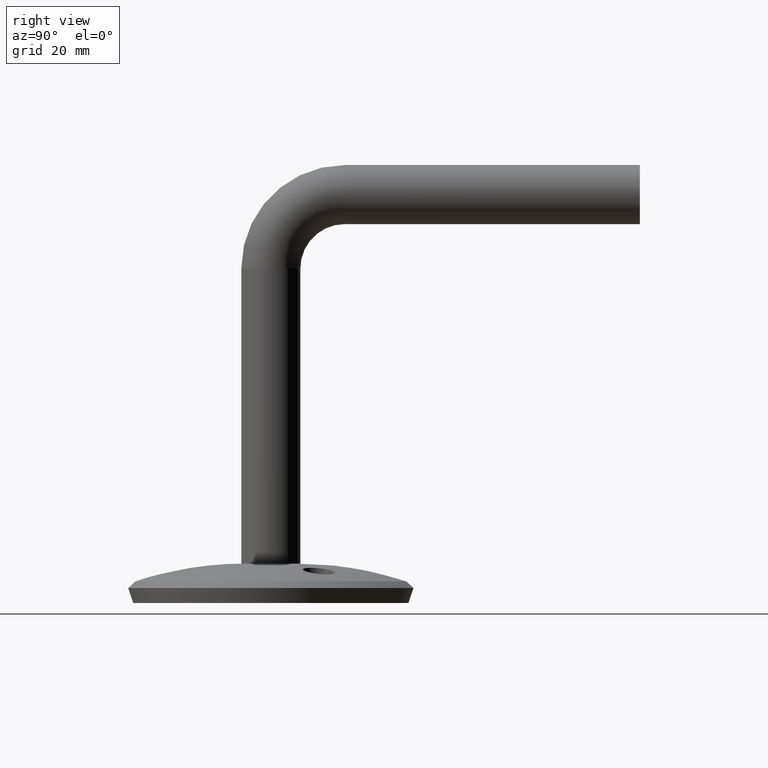
[diagram: clean part render]
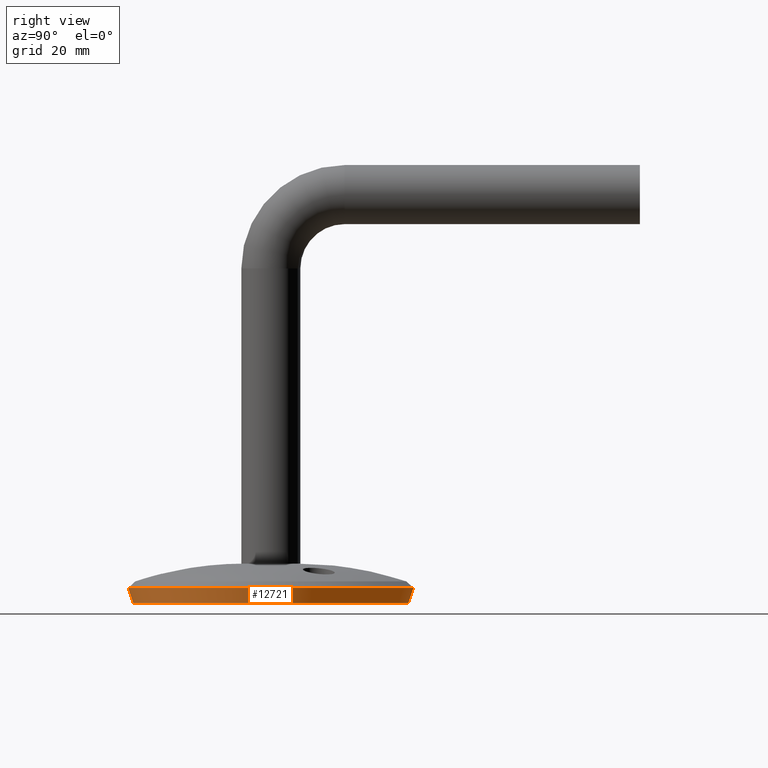
[diagram: same view with one face highlighted and labeled with its STEP entity id]
A machine part, right view. The second image highlights one B-rep face of the part: STEP entity #12721.
In plain terms, the highlighted conical surface has half-angle 18.771 deg.
Its self-contained STEP definition (entity closure, byte-faithful):
#511 = AXIS2_PLACEMENT_3D ( 'NONE', #11606, #4089, #8349 ) ;
#550 = CARTESIAN_POINT ( 'NONE',  ( 0.000000000000000000, 3.039262542945622592, -29.00000000000000000 ) ) ;
#1093 = LINE ( 'NONE', #14091, #10307 ) ;
#1285 = CIRCLE ( 'NONE', #511, 27.96705121373434011 ) ;
#1357 = EDGE_CURVE ( 'NONE', #4050, #9222, #1911, .T. ) ;
#1911 = CIRCLE ( 'NONE', #2829, 29.00000000000000000 ) ;
#2233 = ORIENTED_EDGE ( 'NONE', *, *, #10671, .F. ) ;
#2764 = CARTESIAN_POINT ( 'NONE',  ( 0.000000000000000000, 3.039262542945622592, 0.000000000000000000 ) ) ;
#2829 = AXIS2_PLACEMENT_3D ( 'NONE', #2764, #6011, #13801 ) ;
#3103 = DIRECTION ( 'NONE',  ( 0.000000000000000000, 0.000000000000000000, 1.000000000000000000 ) ) ;
#3606 = CARTESIAN_POINT ( 'NONE',  ( 0.000000000000000000, 0.000000000000000000, -27.96705121373435077 ) ) ;
#3908 = CARTESIAN_POINT ( 'NONE',  ( 0.000000000000000000, 0.000000000000000000, 27.96705121373434011 ) ) ;
#4050 = VERTEX_POINT ( 'NONE', #550 ) ;
#4089 = DIRECTION ( 'NONE',  ( -0.000000000000000000, -1.000000000000000000, -0.000000000000000000 ) ) ;
#4153 = DIRECTION ( 'NONE',  ( 0.000000000000000000, 1.000000000000000000, 0.000000000000000000 ) ) ;
#5906 = DIRECTION ( 'NONE',  ( 0.000000000000000000, 0.9468107610422501486, 0.3217908991481814862 ) ) ;
#6011 = DIRECTION ( 'NONE',  ( -0.000000000000000000, -1.000000000000000000, -0.000000000000000000 ) ) ;
#6282 = ORIENTED_EDGE ( 'NONE', *, *, #8158, .F. ) ;
#6929 = ORIENTED_EDGE ( 'NONE', *, *, #8319, .T. ) ;
#7309 = VECTOR ( 'NONE', #5906, 1000.000000000000000 ) ;
#7416 = CARTESIAN_POINT ( 'NONE',  ( 0.000000000000000000, 0.000000000000000000, 0.000000000000000000 ) ) ;
#8158 = EDGE_CURVE ( 'NONE', #12902, #10326, #1285, .T. ) ;
#8319 = EDGE_CURVE ( 'NONE', #12902, #4050, #1093, .T. ) ;
#8349 = DIRECTION ( 'NONE',  ( 0.000000000000000000, 0.000000000000000000, -1.000000000000000000 ) ) ;
#8492 = CONICAL_SURFACE ( 'NONE', #12969, 27.96705121373434011, 0.3276203877854917401 ) ;
#9180 = CARTESIAN_POINT ( 'NONE',  ( 3.551475717527324030E-15, 3.039262542945622592, 29.00000000000000000 ) ) ;
#9222 = VERTEX_POINT ( 'NONE', #9180 ) ;
#9376 = FACE_OUTER_BOUND ( 'NONE', #12661, .T. ) ;
#9660 = CARTESIAN_POINT ( 'NONE',  ( 3.424975975048986908E-15, 0.000000000000000000, 27.96705121373435077 ) ) ;
#10307 = VECTOR ( 'NONE', #12826, 1000.000000000000000 ) ;
#10326 = VERTEX_POINT ( 'NONE', #9660 ) ;
#10360 = ORIENTED_EDGE ( 'NONE', *, *, #1357, .T. ) ;
#10671 = EDGE_CURVE ( 'NONE', #10326, #9222, #13551, .T. ) ;
#11606 = CARTESIAN_POINT ( 'NONE',  ( 0.000000000000000000, 0.000000000000000000, 0.000000000000000000 ) ) ;
#12661 = EDGE_LOOP ( 'NONE', ( #6282, #6929, #10360, #2233 ) ) ;
#12721 = ADVANCED_FACE ( 'NONE', ( #9376 ), #8492, .T. ) ;
#12826 = DIRECTION ( 'NONE',  ( 3.940801946365692299E-17, 0.9468107610422501486, -0.3217908991481814862 ) ) ;
#12902 = VERTEX_POINT ( 'NONE', #3606 ) ;
#12969 = AXIS2_PLACEMENT_3D ( 'NONE', #7416, #4153, #3103 ) ;
#13551 = LINE ( 'NONE', #3908, #7309 ) ;
#13801 = DIRECTION ( 'NONE',  ( 0.000000000000000000, 0.000000000000000000, -1.000000000000000000 ) ) ;
#14091 = CARTESIAN_POINT ( 'NONE',  ( 3.424975975048986119E-15, 0.000000000000000000, -27.96705121373434011 ) ) ;